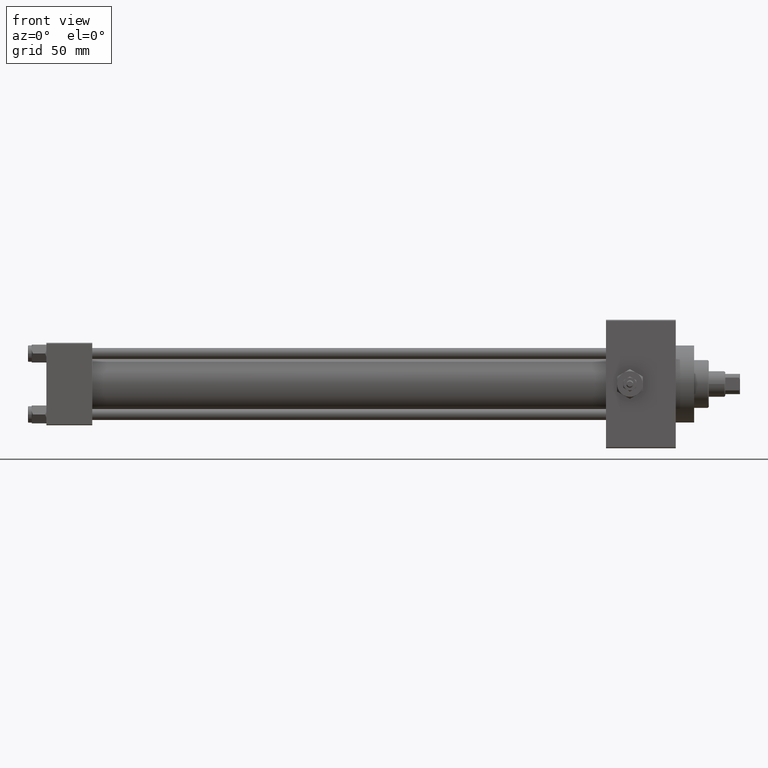
[diagram: clean part render]
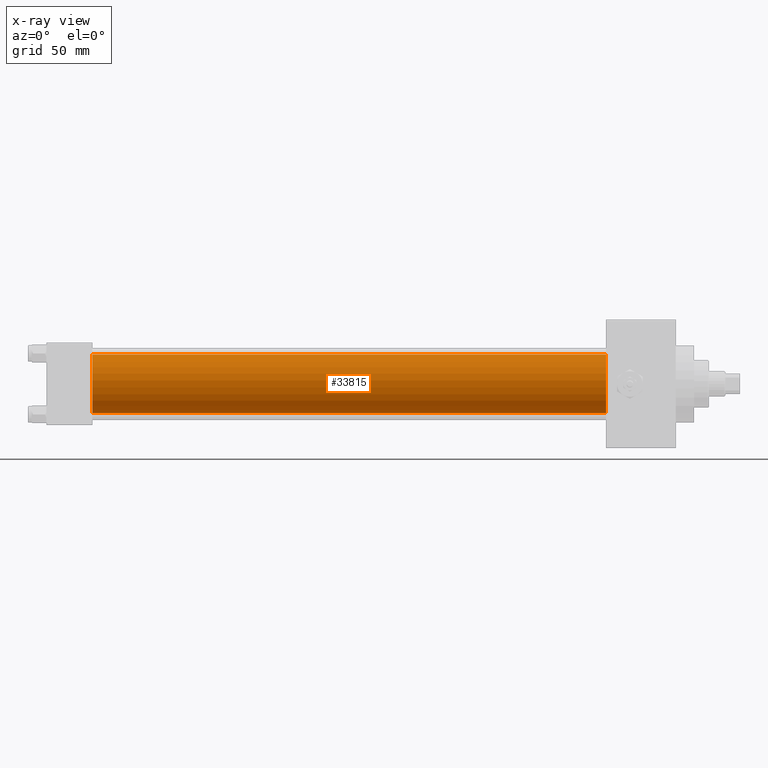
[diagram: x-ray — body ghosted, one internal face saturated and labeled with its STEP entity id]
A machine part, front view, then the same camera in x-ray: the body is ghosted and one INTERNAL B-rep face — a face not visible from any outside direction — is saturated and labeled: STEP entity #33815.
In plain terms, the highlighted cylindrical surface (edge-blend (fillet) strip) has radius 16 mm, axis along (-1, -0, -0).
Its self-contained STEP definition (entity closure, byte-faithful):
#1458 = CYLINDRICAL_SURFACE ( 'NONE', #39033, 16.00000000000000000 ) ;
#7804 = CARTESIAN_POINT ( 'NONE',  ( 305.0000000000000568, -6.426503353294456087E-16, -16.00000000000000000 ) ) ;
#7912 = CIRCLE ( 'NONE', #22047, 16.00000000000000000 ) ;
#9546 = CARTESIAN_POINT ( 'NONE',  ( 305.0000000000000568, -2.602085213965210642E-15, 0.000000000000000000 ) ) ;
#10669 = VERTEX_POINT ( 'NONE', #20819 ) ;
#10776 = CARTESIAN_POINT ( 'NONE',  ( 305.0000000000000568, -6.426503353294456087E-16, -16.00000000000000000 ) ) ;
#11488 = DIRECTION ( 'NONE',  ( -1.000000000000000000, -0.000000000000000000, -0.000000000000000000 ) ) ;
#12368 = EDGE_CURVE ( 'NONE', #10669, #18862, #42165, .T. ) ;
#13486 = DIRECTION ( 'NONE',  ( -1.000000000000000000, -0.000000000000000000, -0.000000000000000000 ) ) ;
#13505 = VERTEX_POINT ( 'NONE', #10776 ) ;
#14547 = EDGE_CURVE ( 'NONE', #33503, #13505, #7912, .T. ) ;
#14618 = DIRECTION ( 'NONE',  ( -1.000000000000000000, -0.000000000000000000, -0.000000000000000000 ) ) ;
#15927 = EDGE_CURVE ( 'NONE', #33503, #10669, #44587, .T. ) ;
#17920 = DIRECTION ( 'NONE',  ( 0.000000000000000000, 0.000000000000000000, -1.000000000000000000 ) ) ;
#18183 = DIRECTION ( 'NONE',  ( 1.000000000000000000, 0.000000000000000000, 0.000000000000000000 ) ) ;
#18635 = CARTESIAN_POINT ( 'NONE',  ( 25.00000000000000000, -6.426503353294456087E-16, -16.00000000000000000 ) ) ;
#18862 = VERTEX_POINT ( 'NONE', #18635 ) ;
#20819 = CARTESIAN_POINT ( 'NONE',  ( 25.00000000000000000, -2.602085213965210642E-15, 16.00000000000000000 ) ) ;
#22047 = AXIS2_PLACEMENT_3D ( 'NONE', #25305, #41263, #17920 ) ;
#23025 = LINE ( 'NONE', #7804, #37181 ) ;
#23554 = ORIENTED_EDGE ( 'NONE', *, *, #25579, .T. ) ;
#24829 = DIRECTION ( 'NONE',  ( 0.000000000000000000, 0.000000000000000000, -1.000000000000000000 ) ) ;
#25204 = CARTESIAN_POINT ( 'NONE',  ( 305.0000000000000568, -2.602085213965210642E-15, 16.00000000000000000 ) ) ;
#25305 = CARTESIAN_POINT ( 'NONE',  ( 305.0000000000000568, -2.602085213965210642E-15, 0.000000000000000000 ) ) ;
#25316 = CARTESIAN_POINT ( 'NONE',  ( 25.00000000000000000, -2.602085213965210642E-15, 0.000000000000000000 ) ) ;
#25579 = EDGE_CURVE ( 'NONE', #13505, #18862, #23025, .T. ) ;
#26056 = EDGE_LOOP ( 'NONE', ( #31020, #23554, #27988, #41632 ) ) ;
#27988 = ORIENTED_EDGE ( 'NONE', *, *, #12368, .F. ) ;
#29679 = AXIS2_PLACEMENT_3D ( 'NONE', #25316, #18183, #24829 ) ;
#31020 = ORIENTED_EDGE ( 'NONE', *, *, #14547, .T. ) ;
#33503 = VERTEX_POINT ( 'NONE', #48184 ) ;
#33815 = ADVANCED_FACE ( 'NONE', ( #43466 ), #1458, .F. ) ;
#37181 = VECTOR ( 'NONE', #11488, 1000.000000000000000 ) ;
#39033 = AXIS2_PLACEMENT_3D ( 'NONE', #9546, #13486, #46659 ) ;
#41263 = DIRECTION ( 'NONE',  ( 1.000000000000000000, 0.000000000000000000, 0.000000000000000000 ) ) ;
#41632 = ORIENTED_EDGE ( 'NONE', *, *, #15927, .F. ) ;
#42165 = CIRCLE ( 'NONE', #29679, 16.00000000000000000 ) ;
#42501 = VECTOR ( 'NONE', #14618, 1000.000000000000000 ) ;
#43466 = FACE_OUTER_BOUND ( 'NONE', #26056, .T. ) ;
#44587 = LINE ( 'NONE', #25204, #42501 ) ;
#46659 = DIRECTION ( 'NONE',  ( 0.000000000000000000, 0.000000000000000000, 1.000000000000000000 ) ) ;
#48184 = CARTESIAN_POINT ( 'NONE',  ( 305.0000000000000568, -2.602085213965210642E-15, 16.00000000000000000 ) ) ;